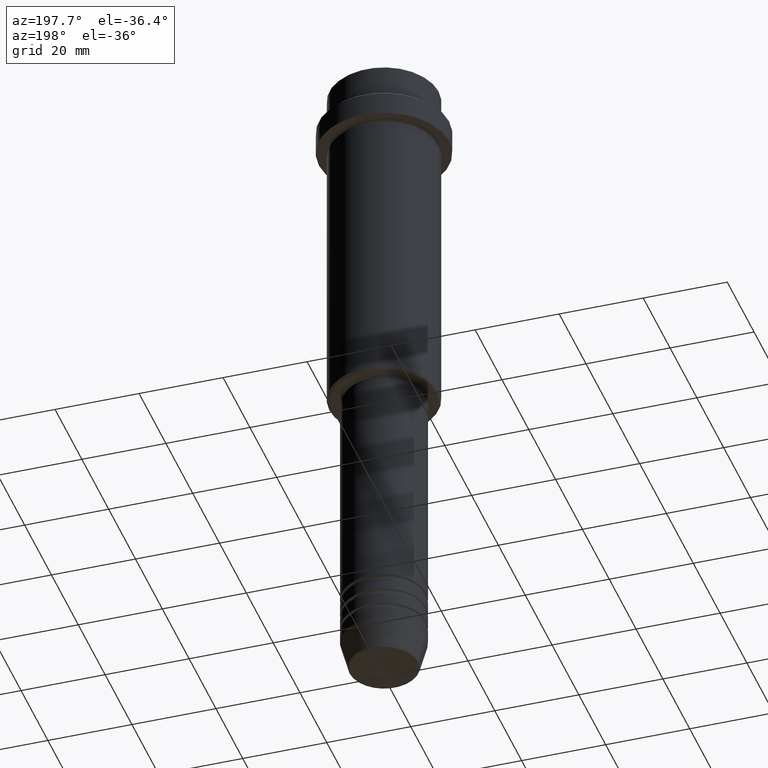
[diagram: clean part render]
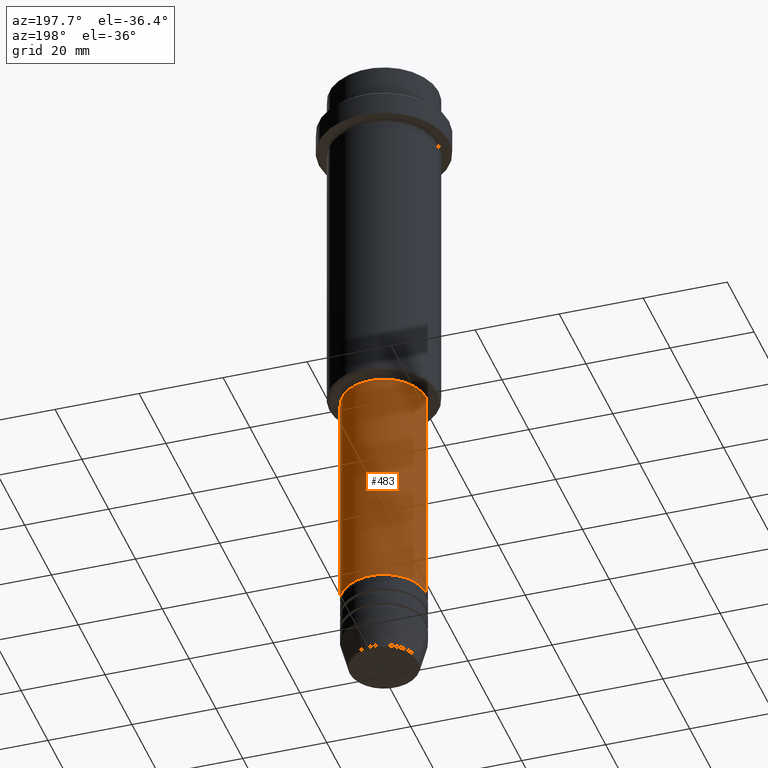
[diagram: same view with one face highlighted and labeled with its STEP entity id]
A machine part, auxiliary view. The second image highlights one B-rep face of the part: STEP entity #483.
In plain terms, the highlighted cylindrical surface (partial cylindrical patch) has radius 10 mm, axis along (-0, -0, 1).
Its self-contained STEP definition (entity closure, byte-faithful):
#54 = ORIENTED_EDGE ( 'NONE', *, *, #532, .F. ) ;
#85 = AXIS2_PLACEMENT_3D ( 'NONE', #316, #869, #992 ) ;
#105 = CIRCLE ( 'NONE', #1161, 10.00000000000000178 ) ;
#138 = DIRECTION ( 'NONE',  ( -0.000000000000000000, -0.000000000000000000, 1.000000000000000000 ) ) ;
#187 = CARTESIAN_POINT ( 'NONE',  ( 10.00000000000000178, 0.000000000000000000, -86.00000000000000000 ) ) ;
#217 = ORIENTED_EDGE ( 'NONE', *, *, #691, .F. ) ;
#278 = EDGE_CURVE ( 'NONE', #340, #482, #552, .T. ) ;
#309 = VERTEX_POINT ( 'NONE', #771 ) ;
#316 = CARTESIAN_POINT ( 'NONE',  ( 0.000000000000000000, 0.000000000000000000, -140.9999999999999147 ) ) ;
#340 = VERTEX_POINT ( 'NONE', #1122 ) ;
#422 = VECTOR ( 'NONE', #519, 1000.000000000000000 ) ;
#439 = CARTESIAN_POINT ( 'NONE',  ( 0.000000000000000000, 0.000000000000000000, -86.00000000000000000 ) ) ;
#482 = VERTEX_POINT ( 'NONE', #957 ) ;
#483 = ADVANCED_FACE ( 'NONE', ( #1374 ), #843, .T. ) ;
#519 = DIRECTION ( 'NONE',  ( -0.000000000000000000, -0.000000000000000000, 1.000000000000000000 ) ) ;
#530 = EDGE_CURVE ( 'NONE', #309, #340, #1073, .T. ) ;
#532 = EDGE_CURVE ( 'NONE', #1293, #482, #105, .T. ) ;
#552 = LINE ( 'NONE', #767, #575 ) ;
#574 = CARTESIAN_POINT ( 'NONE',  ( 0.000000000000000000, 0.000000000000000000, 0.000000000000000000 ) ) ;
#575 = VECTOR ( 'NONE', #138, 1000.000000000000000 ) ;
#691 = EDGE_CURVE ( 'NONE', #309, #1293, #741, .T. ) ;
#741 = LINE ( 'NONE', #1176, #422 ) ;
#767 = CARTESIAN_POINT ( 'NONE',  ( -10.00000000000000178, 1.224646799147353454E-15, 0.000000000000000000 ) ) ;
#771 = CARTESIAN_POINT ( 'NONE',  ( 10.00000000000000000, 0.000000000000000000, -140.9999999999999147 ) ) ;
#843 = CYLINDRICAL_SURFACE ( 'NONE', #1296, 10.00000000000000178 ) ;
#869 = DIRECTION ( 'NONE',  ( -0.000000000000000000, -0.000000000000000000, 1.000000000000000000 ) ) ;
#957 = CARTESIAN_POINT ( 'NONE',  ( -10.00000000000000178, 1.224646799147353454E-15, -86.00000000000000000 ) ) ;
#966 = ORIENTED_EDGE ( 'NONE', *, *, #530, .T. ) ;
#973 = DIRECTION ( 'NONE',  ( -0.000000000000000000, -0.000000000000000000, 1.000000000000000000 ) ) ;
#992 = DIRECTION ( 'NONE',  ( 1.000000000000000000, 0.000000000000000000, 0.000000000000000000 ) ) ;
#1073 = CIRCLE ( 'NONE', #85, 10.00000000000000000 ) ;
#1122 = CARTESIAN_POINT ( 'NONE',  ( -10.00000000000000000, 1.224646799147353256E-15, -140.9999999999999147 ) ) ;
#1144 = DIRECTION ( 'NONE',  ( 1.000000000000000000, 0.000000000000000000, 0.000000000000000000 ) ) ;
#1161 = AXIS2_PLACEMENT_3D ( 'NONE', #439, #973, #1308 ) ;
#1176 = CARTESIAN_POINT ( 'NONE',  ( 10.00000000000000178, 0.000000000000000000, 0.000000000000000000 ) ) ;
#1189 = ORIENTED_EDGE ( 'NONE', *, *, #278, .T. ) ;
#1293 = VERTEX_POINT ( 'NONE', #187 ) ;
#1296 = AXIS2_PLACEMENT_3D ( 'NONE', #574, #1356, #1144 ) ;
#1308 = DIRECTION ( 'NONE',  ( 1.000000000000000000, 0.000000000000000000, 0.000000000000000000 ) ) ;
#1356 = DIRECTION ( 'NONE',  ( -0.000000000000000000, -0.000000000000000000, 1.000000000000000000 ) ) ;
#1374 = FACE_OUTER_BOUND ( 'NONE', #1394, .T. ) ;
#1394 = EDGE_LOOP ( 'NONE', ( #966, #1189, #54, #217 ) ) ;